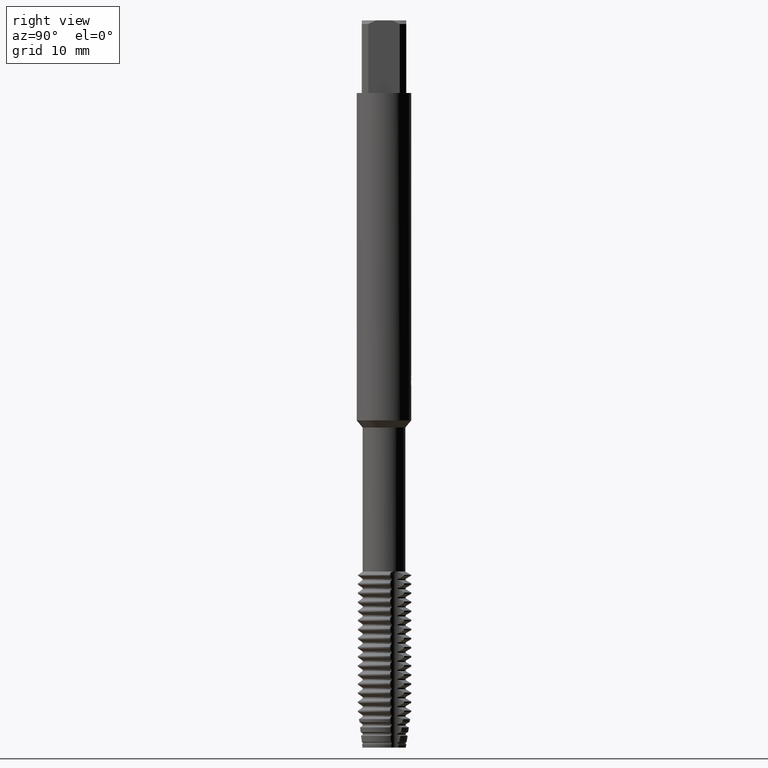
[diagram: clean part render]
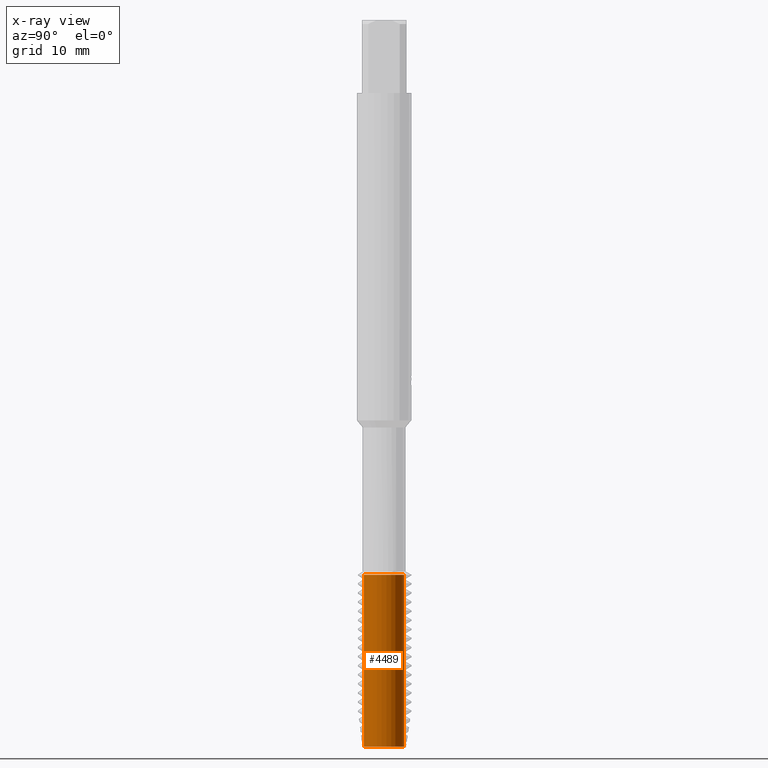
[diagram: x-ray — body ghosted, one internal face saturated and labeled with its STEP entity id]
A machine part, right view, then the same camera in x-ray: the body is ghosted and one INTERNAL B-rep face — a face not visible from any outside direction — is saturated and labeled: STEP entity #4489.
In plain terms, the highlighted cylindrical surface (edge-blend (fillet) strip) has radius 2.2129 mm, axis along (-0, -0, 1).
Its self-contained STEP definition (entity closure, byte-faithful):
#2435=EDGE_CURVE('',#5069,#6607,#7205,.T.);
#4375=VERTEX_POINT('',#9329);
#4489=ADVANCED_FACE('',(#9454),#9455,.T.);
#5069=VERTEX_POINT('',#10091);
#5423=EDGE_CURVE('',#6607,#6653,#10474,.T.);
#5909=EDGE_CURVE('',#5069,#4375,#11010,.T.);
#6607=VERTEX_POINT('',#11756);
#6653=VERTEX_POINT('',#11805);
#6915=EDGE_CURVE('',#6653,#4375,#12089,.T.);
#7205=LINE('',#12426,#12427);
#9329=CARTESIAN_POINT('',(2.7098832855899E-016,-2.21286071,-61.0));
#9454=FACE_OUTER_BOUND('',#16440,.T.);
#9455=CYLINDRICAL_SURFACE('',#16441,2.21286071);
#10091=CARTESIAN_POINT('',(0.0,2.21286071,-61.0));
#10474=CIRCLE('',#18166,2.21286071);
#11010=CIRCLE('',#19115,2.21286071);
#11756=CARTESIAN_POINT('',(0.0,2.21286071,-79.9166802199437));
#11805=CARTESIAN_POINT('',(2.7098832855899E-016,-2.21286071,-79.9166802199437));
#12089=LINE('',#21051,#21052);
#12426=CARTESIAN_POINT('',(-2.7098832855899E-016,2.21286071,-70.4583401099719));
#12427=VECTOR('',#21541,1.0);
#16440=EDGE_LOOP('',(#23963,#23964,#23965,#23966));
#16441=AXIS2_PLACEMENT_3D('',#23967,#23968,#23969);
#18166=AXIS2_PLACEMENT_3D('',#25363,#25364,#25365);
#19115=AXIS2_PLACEMENT_3D('',#26142,#26143,#26144);
#21051=CARTESIAN_POINT('',(2.7098832855899E-016,-2.21286071,-70.4583401099719));
#21052=VECTOR('',#27183,1.0);
#21541=DIRECTION('',(0.0,0.0,-1.0));
#23963=ORIENTED_EDGE('',*,*,#2435,.F.);
#23964=ORIENTED_EDGE('',*,*,#5909,.T.);
#23965=ORIENTED_EDGE('',*,*,#6915,.F.);
#23966=ORIENTED_EDGE('',*,*,#5423,.F.);
#23967=CARTESIAN_POINT('',(0.0,0.0,-70.4583401099719));
#23968=DIRECTION('',(-0.0,-0.0,1.0));
#23969=DIRECTION('',(0.0,1.0,0.0));
#25363=CARTESIAN_POINT('',(0.0,0.0,-79.9166802199437));
#25364=DIRECTION('',(0.0,0.0,-1.0));
#25365=DIRECTION('',(0.0,1.0,0.0));
#26142=CARTESIAN_POINT('',(0.0,0.0,-61.0));
#26143=DIRECTION('',(0.0,0.0,-1.0));
#26144=DIRECTION('',(0.0,1.0,0.0));
#27183=DIRECTION('',(-0.0,-0.0,1.0));